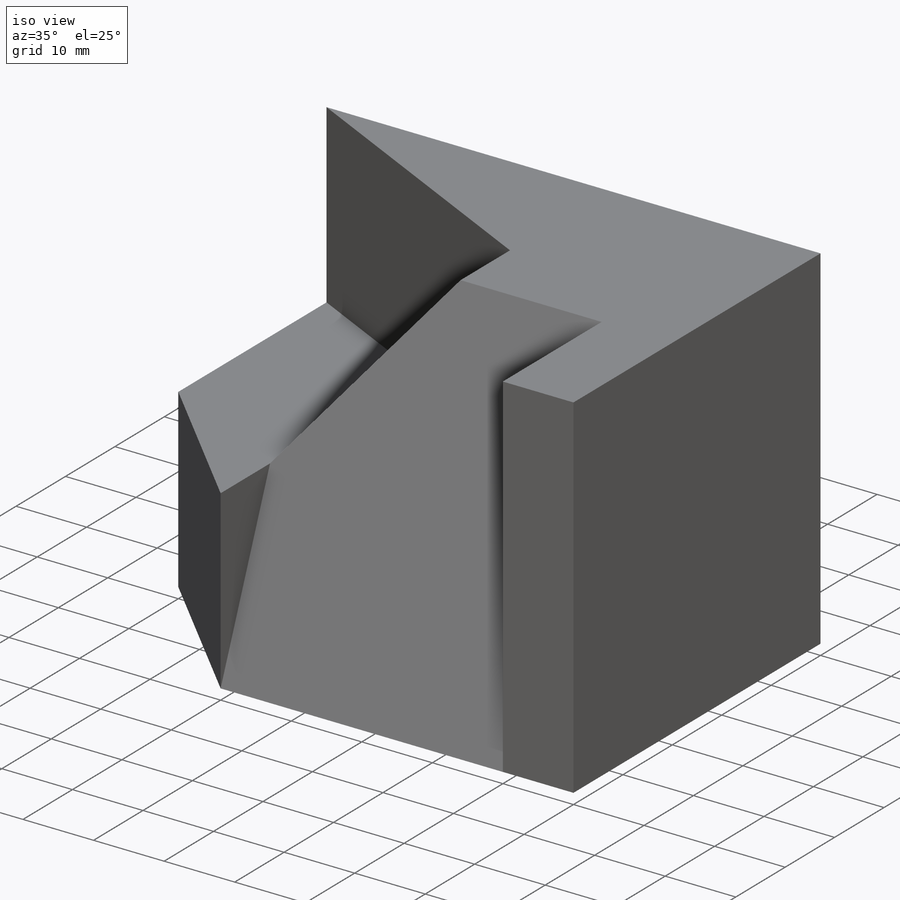
[diagram: iso view]
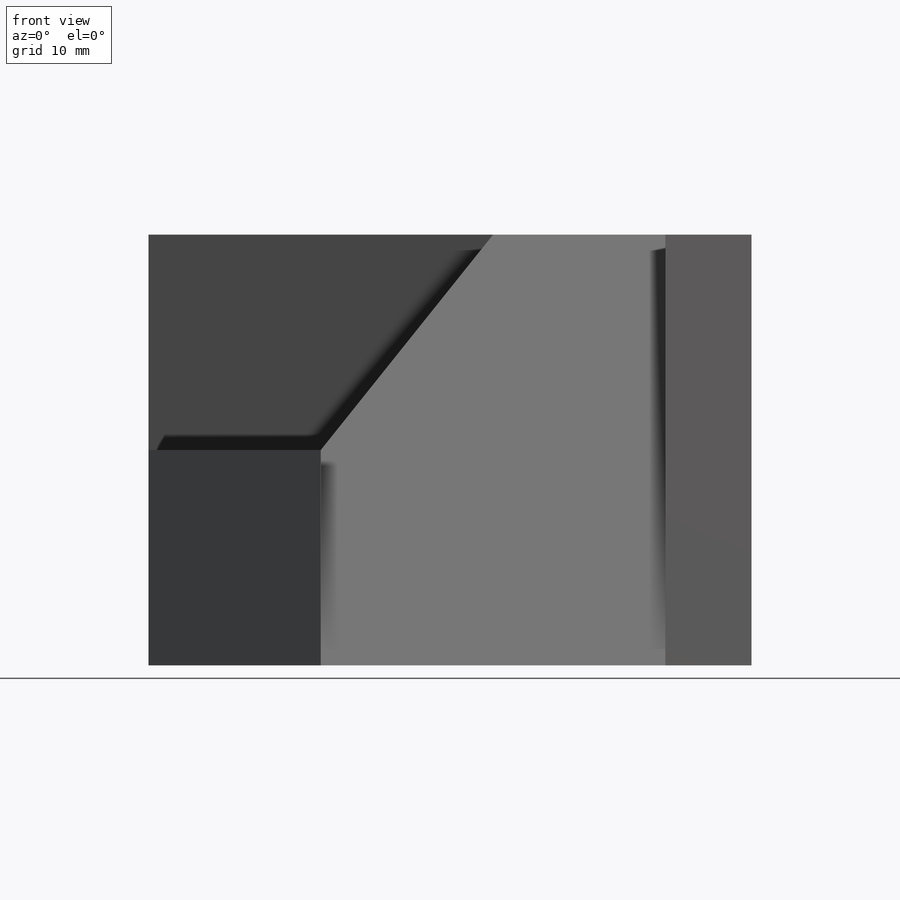
[diagram: front view]
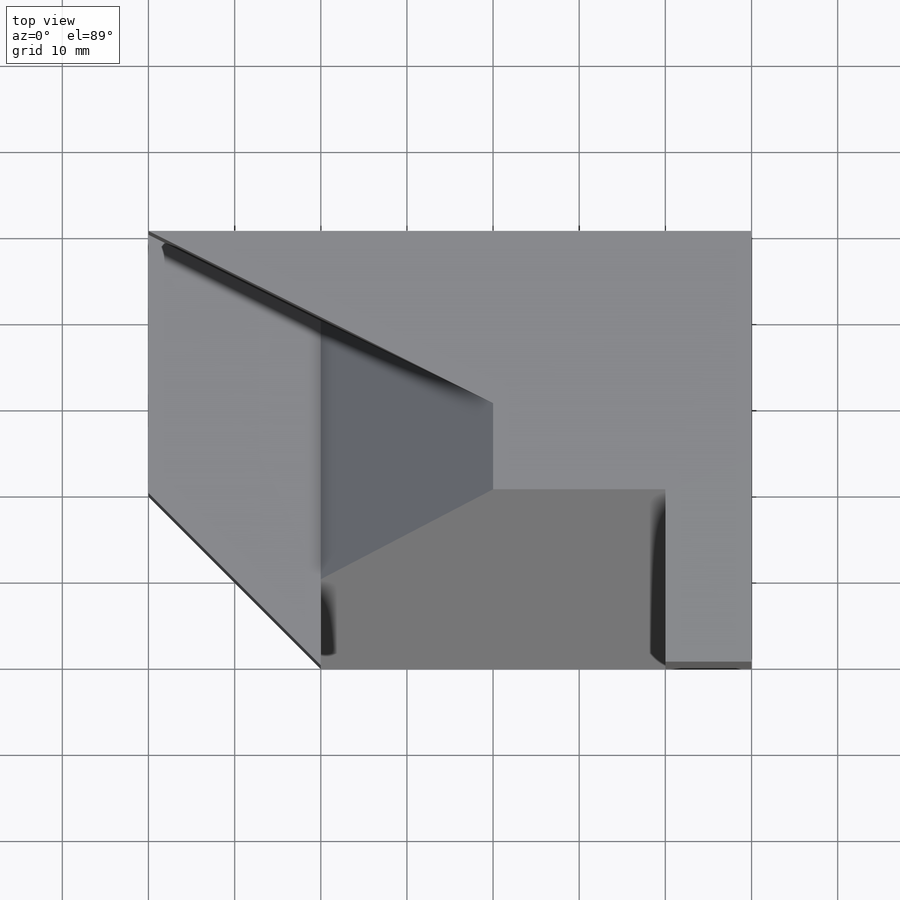
[diagram: top view]
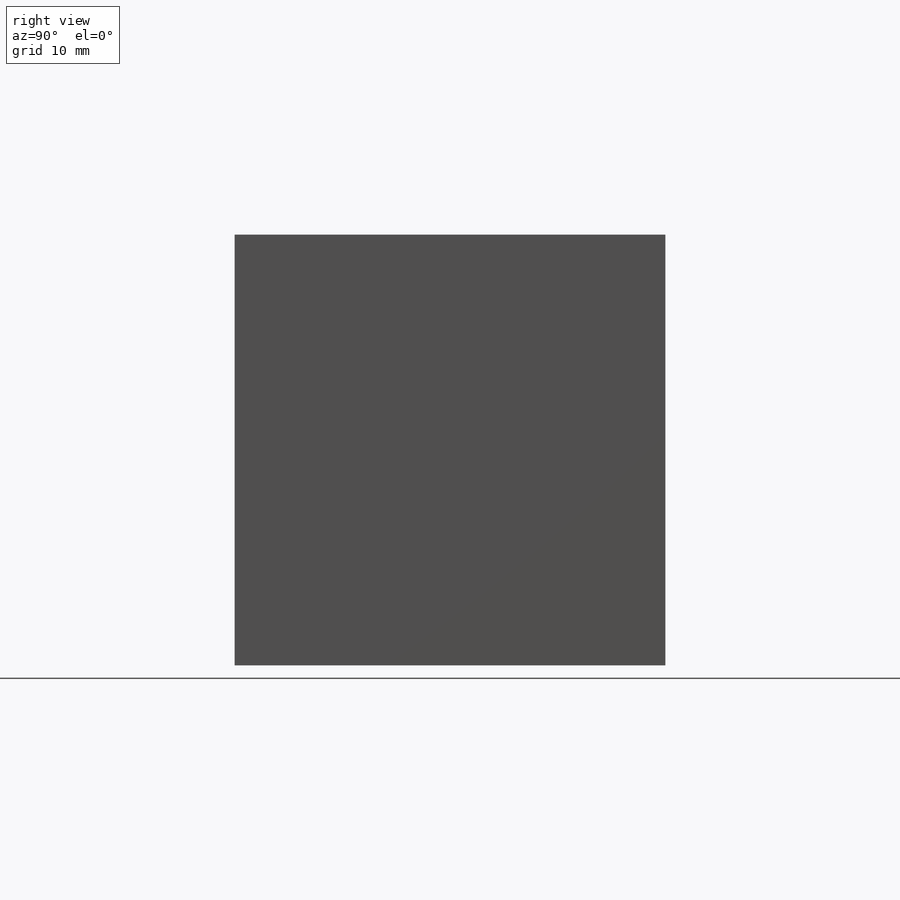
[diagram: right view]
SOLIDWORKS PART (.sldprt)
format: sldprt  version: not decoded by parser v0  size: 418,304 bytes
history: native  units: mm
features: sketch x22, cut_extrude x12, extrude x10, plane x4, material x1 (+13 scaffold rows collapsed)
feature tree (62):
  scaffold x13  (default folders/planes/origin — collapsed)
  material  "Material <not specified>"
  sketch  "Sketch1"  dims[D1=70.0mm D2=50.0mm]
  extrude  "Boss-Extrude1"  Depth=50mm
  sketch  "Sketch2"  dims[D1=20.0mm D2=20.0mm]
  cut_extrude  "Cut-Extrude1"  Depth=50mm
  sketch  "Sketch3"  dims[D1=20.0mm D2=10.0mm D3=20.0mm]
  cut_extrude  "Cut-Extrude2"  Depth=20mm
  sketch  "Sketch4"  dims[D1=10.0mm]
  cut_extrude  "Cut-Extrude3"  Depth=20mm
  sketch  "Sketch5"
  cut_extrude  "Cut-Extrude4"  Depth=5mm
  sketch  "Sketch6"
  extrude  "Boss-Extrude2"  Depth=25mm
  sketch  "Sketch7"
  cut_extrude  "Cut-Extrude5"  Depth=25mm
  sketch  "Sketch8"  dims[D1=20.0mm]
  extrude  "Boss-Extrude3"  Depth=30mm
  sketch  "Sketch9"  dims[D1=10.0mm D2=10.0mm]
  extrude  "Boss-Extrude4"  Depth=50mm
  sketch  "Sketch10"  dims[D1=10.0mm]
  cut_extrude  "Cut-Extrude7"  Depth=15mm
  plane  "Plane1"
  sketch  "Sketch11"  dims[D1=~32.465193mm]
  cut_extrude  "Cut-Extrude8"  Depth=15mm
  sketch  "Sketch12"
  extrude  "Boss-Extrude5"  Depth=15mm
  sketch  "Sketch13"
  cut_extrude  "Cut-Extrude12"  Depth=15mm
  sketch  "Sketch15"
  cut_extrude  "Cut-Extrude13"  Depth=15mm
  sketch  "Sketch16"
  extrude  "Boss-Extrude6"  Depth=15mm
  plane  "Plane2"
  sketch  "Sketch22"
  cut_extrude  "Cut-Extrude15"  Depth=15mm
  plane  "Plane5"
  sketch  "Sketch28"
  extrude  "Boss-Extrude11"  Depth=15mm
  plane  "Plane6"
  sketch  "Sketch29"
  cut_extrude  "Cut-Extrude18"  Depth=15mm
  sketch  "Sketch30"
  cut_extrude  "Cut-Extrude19"  Depth=15mm
  sketch  "Sketch32"
  extrude  "Boss-Extrude14"  Depth=15mm
  sketch  "Sketch34"
  extrude  "Boss-Extrude17"  Depth=25mm
  sketch  "Sketch35"
  extrude  "Boss-Extrude18"  Depth=25mm
decode coverage: 30 of 44 modeling features carry decoded parameters
note: ~ marks probable driven/reference dimensions
note: suppression state not decoded; provenance and decode notes live in map.json
